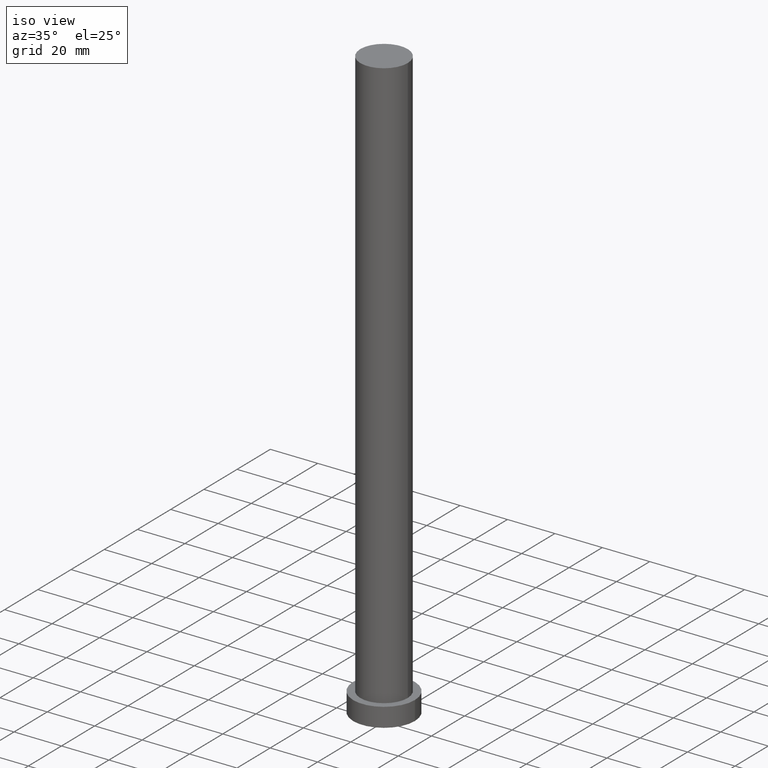
[diagram: clean part render]
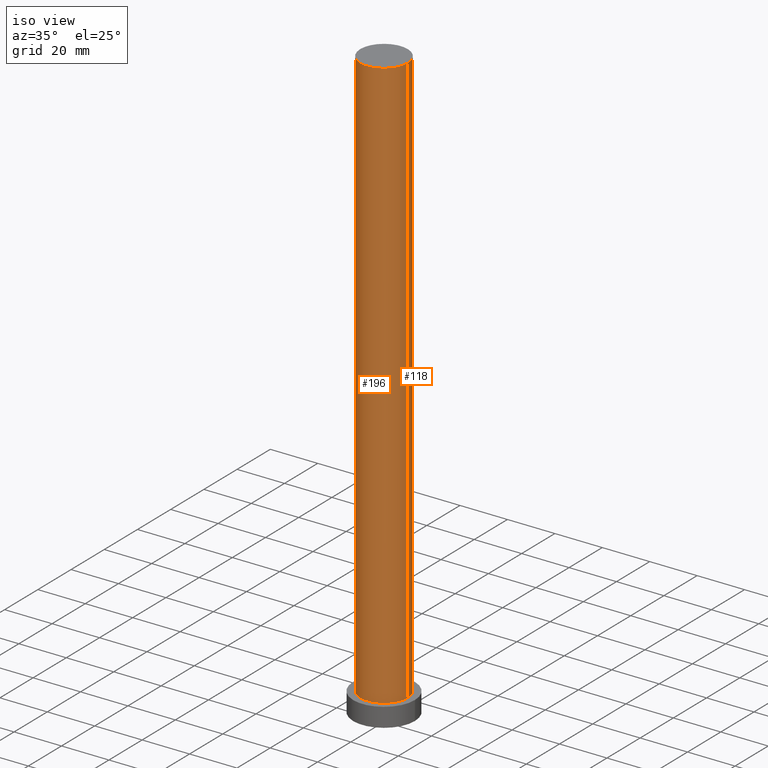
[diagram: same view with one multi-face feature highlighted, each face labeled with its STEP entity id]
A machine part, iso view. The highlighted faces form ONE feature: a constant-radius fillet chain: 2 tangent blend faces with common blend radius 10 mm. The faces share edges in the B-rep.
Their STEP definitions:
[1] entity #118 (Cylinder):
#6 = DIRECTION ( 'NONE',  ( 1.000000000000000000, 0.000000000000000000, 0.000000000000000000 ) ) ;
#10 = EDGE_CURVE ( 'NONE', #142, #102, #42, .T. ) ;
#12 = CARTESIAN_POINT ( 'NONE',  ( 0.000000000000000000, 0.000000000000000000, 8.000000000000000000 ) ) ;
#18 = EDGE_LOOP ( 'NONE', ( #181, #76, #195, #100 ) ) ;
#22 = CARTESIAN_POINT ( 'NONE',  ( 10.00000000000000178, 1.224646799147353454E-15, 250.0000000000000000 ) ) ;
#34 = VERTEX_POINT ( 'NONE', #169 ) ;
#42 = CIRCLE ( 'NONE', #190, 10.00000000000000178 ) ;
#44 = VECTOR ( 'NONE', #62, 1000.000000000000000 ) ;
#47 = DIRECTION ( 'NONE',  ( 0.000000000000000000, 0.000000000000000000, 1.000000000000000000 ) ) ;
#56 = AXIS2_PLACEMENT_3D ( 'NONE', #200, #171, #245 ) ;
#62 = DIRECTION ( 'NONE',  ( -0.000000000000000000, -0.000000000000000000, -1.000000000000000000 ) ) ;
#63 = DIRECTION ( 'NONE',  ( -0.000000000000000000, -0.000000000000000000, -1.000000000000000000 ) ) ;
#67 = LINE ( 'NONE', #241, #237 ) ;
#76 = ORIENTED_EDGE ( 'NONE', *, *, #130, .T. ) ;
#85 = FACE_OUTER_BOUND ( 'NONE', #18, .T. ) ;
#93 = DIRECTION ( 'NONE',  ( 0.000000000000000000, 0.000000000000000000, 1.000000000000000000 ) ) ;
#94 = AXIS2_PLACEMENT_3D ( 'NONE', #12, #93, #191 ) ;
#100 = ORIENTED_EDGE ( 'NONE', *, *, #173, .F. ) ;
#102 = VERTEX_POINT ( 'NONE', #187 ) ;
#104 = LINE ( 'NONE', #167, #44 ) ;
#118 = ADVANCED_FACE ( 'NONE', ( #85 ), #201, .T. ) ;
#128 = CIRCLE ( 'NONE', #94, 10.00000000000000178 ) ;
#130 = EDGE_CURVE ( 'NONE', #142, #213, #67, .T. ) ;
#142 = VERTEX_POINT ( 'NONE', #22 ) ;
#167 = CARTESIAN_POINT ( 'NONE',  ( -10.00000000000000178, 0.000000000000000000, 250.0000000000000000 ) ) ;
#169 = CARTESIAN_POINT ( 'NONE',  ( -10.00000000000000178, 0.000000000000000000, 8.000000000000000000 ) ) ;
#171 = DIRECTION ( 'NONE',  ( -0.000000000000000000, -0.000000000000000000, -1.000000000000000000 ) ) ;
#173 = EDGE_CURVE ( 'NONE', #102, #34, #104, .T. ) ;
#181 = ORIENTED_EDGE ( 'NONE', *, *, #10, .F. ) ;
#187 = CARTESIAN_POINT ( 'NONE',  ( -10.00000000000000178, 0.000000000000000000, 250.0000000000000000 ) ) ;
#190 = AXIS2_PLACEMENT_3D ( 'NONE', #204, #47, #6 ) ;
#191 = DIRECTION ( 'NONE',  ( 1.000000000000000000, 0.000000000000000000, 0.000000000000000000 ) ) ;
#195 = ORIENTED_EDGE ( 'NONE', *, *, #238, .T. ) ;
#200 = CARTESIAN_POINT ( 'NONE',  ( 0.000000000000000000, 0.000000000000000000, 250.0000000000000000 ) ) ;
#201 = CYLINDRICAL_SURFACE ( 'NONE', #56, 10.00000000000000178 ) ;
#204 = CARTESIAN_POINT ( 'NONE',  ( 0.000000000000000000, 0.000000000000000000, 250.0000000000000000 ) ) ;
#213 = VERTEX_POINT ( 'NONE', #250 ) ;
#237 = VECTOR ( 'NONE', #63, 1000.000000000000000 ) ;
#238 = EDGE_CURVE ( 'NONE', #213, #34, #128, .T. ) ;
#241 = CARTESIAN_POINT ( 'NONE',  ( 10.00000000000000178, 1.224646799147353454E-15, 250.0000000000000000 ) ) ;
#245 = DIRECTION ( 'NONE',  ( -1.000000000000000000, 0.000000000000000000, 0.000000000000000000 ) ) ;
#250 = CARTESIAN_POINT ( 'NONE',  ( 10.00000000000000178, 1.224646799147353454E-15, 8.000000000000000000 ) ) ;
[2] entity #196 (Cylinder):
#21 = ORIENTED_EDGE ( 'NONE', *, *, #173, .T. ) ;
#22 = CARTESIAN_POINT ( 'NONE',  ( 10.00000000000000178, 1.224646799147353454E-15, 250.0000000000000000 ) ) ;
#34 = VERTEX_POINT ( 'NONE', #169 ) ;
#36 = AXIS2_PLACEMENT_3D ( 'NONE', #223, #84, #110 ) ;
#37 = EDGE_LOOP ( 'NONE', ( #194, #160, #21, #179 ) ) ;
#41 = EDGE_CURVE ( 'NONE', #102, #142, #209, .T. ) ;
#44 = VECTOR ( 'NONE', #62, 1000.000000000000000 ) ;
#45 = DIRECTION ( 'NONE',  ( 0.000000000000000000, 0.000000000000000000, 1.000000000000000000 ) ) ;
#51 = DIRECTION ( 'NONE',  ( -1.000000000000000000, 0.000000000000000000, 0.000000000000000000 ) ) ;
#62 = DIRECTION ( 'NONE',  ( -0.000000000000000000, -0.000000000000000000, -1.000000000000000000 ) ) ;
#63 = DIRECTION ( 'NONE',  ( -0.000000000000000000, -0.000000000000000000, -1.000000000000000000 ) ) ;
#67 = LINE ( 'NONE', #241, #237 ) ;
#84 = DIRECTION ( 'NONE',  ( 0.000000000000000000, 0.000000000000000000, 1.000000000000000000 ) ) ;
#102 = VERTEX_POINT ( 'NONE', #187 ) ;
#104 = LINE ( 'NONE', #167, #44 ) ;
#108 = CIRCLE ( 'NONE', #221, 10.00000000000000178 ) ;
#110 = DIRECTION ( 'NONE',  ( 1.000000000000000000, 0.000000000000000000, 0.000000000000000000 ) ) ;
#129 = DIRECTION ( 'NONE',  ( 1.000000000000000000, 0.000000000000000000, 0.000000000000000000 ) ) ;
#130 = EDGE_CURVE ( 'NONE', #142, #213, #67, .T. ) ;
#131 = CARTESIAN_POINT ( 'NONE',  ( 0.000000000000000000, 0.000000000000000000, 250.0000000000000000 ) ) ;
#142 = VERTEX_POINT ( 'NONE', #22 ) ;
#149 = CARTESIAN_POINT ( 'NONE',  ( 0.000000000000000000, 0.000000000000000000, 8.000000000000000000 ) ) ;
#152 = CYLINDRICAL_SURFACE ( 'NONE', #252, 10.00000000000000178 ) ;
#160 = ORIENTED_EDGE ( 'NONE', *, *, #41, .F. ) ;
#167 = CARTESIAN_POINT ( 'NONE',  ( -10.00000000000000178, 0.000000000000000000, 250.0000000000000000 ) ) ;
#169 = CARTESIAN_POINT ( 'NONE',  ( -10.00000000000000178, 0.000000000000000000, 8.000000000000000000 ) ) ;
#173 = EDGE_CURVE ( 'NONE', #102, #34, #104, .T. ) ;
#179 = ORIENTED_EDGE ( 'NONE', *, *, #180, .T. ) ;
#180 = EDGE_CURVE ( 'NONE', #34, #213, #108, .T. ) ;
#187 = CARTESIAN_POINT ( 'NONE',  ( -10.00000000000000178, 0.000000000000000000, 250.0000000000000000 ) ) ;
#194 = ORIENTED_EDGE ( 'NONE', *, *, #130, .F. ) ;
#196 = ADVANCED_FACE ( 'NONE', ( #242 ), #152, .T. ) ;
#209 = CIRCLE ( 'NONE', #36, 10.00000000000000178 ) ;
#210 = DIRECTION ( 'NONE',  ( -0.000000000000000000, -0.000000000000000000, -1.000000000000000000 ) ) ;
#213 = VERTEX_POINT ( 'NONE', #250 ) ;
#221 = AXIS2_PLACEMENT_3D ( 'NONE', #149, #45, #129 ) ;
#223 = CARTESIAN_POINT ( 'NONE',  ( 0.000000000000000000, 0.000000000000000000, 250.0000000000000000 ) ) ;
#237 = VECTOR ( 'NONE', #63, 1000.000000000000000 ) ;
#241 = CARTESIAN_POINT ( 'NONE',  ( 10.00000000000000178, 1.224646799147353454E-15, 250.0000000000000000 ) ) ;
#242 = FACE_OUTER_BOUND ( 'NONE', #37, .T. ) ;
#250 = CARTESIAN_POINT ( 'NONE',  ( 10.00000000000000178, 1.224646799147353454E-15, 8.000000000000000000 ) ) ;
#252 = AXIS2_PLACEMENT_3D ( 'NONE', #131, #210, #51 ) ;